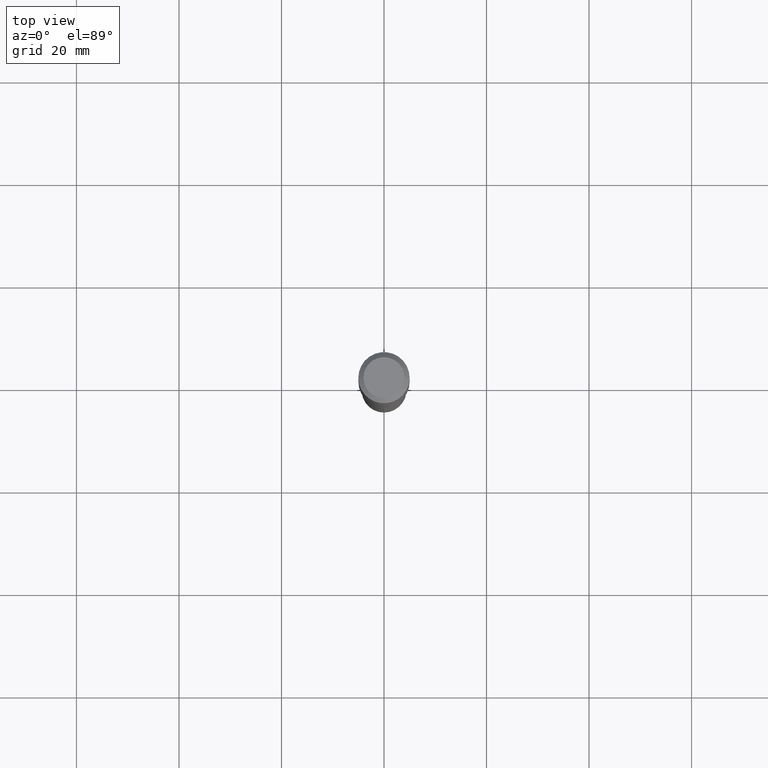
[diagram: clean part render]
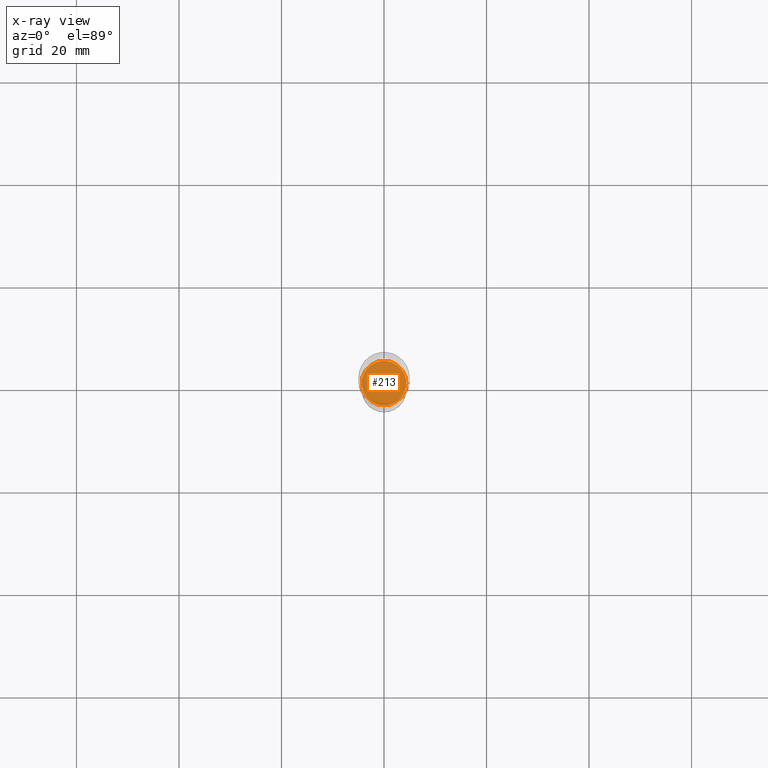
[diagram: x-ray — body ghosted, one internal face saturated and labeled with its STEP entity id]
A machine part, top view, then the same camera in x-ray: the body is ghosted and one INTERNAL B-rep face — a face not visible from any outside direction — is saturated and labeled: STEP entity #213.
In plain terms, the highlighted planar face has unit normal (-0, 0, 1).
Its self-contained STEP definition (entity closure, byte-faithful):
#19 = AXIS2_PLACEMENT_3D ( 'NONE', #127, #358, #44 ) ;
#43 = EDGE_CURVE ( 'NONE', #233, #345, #224, .T. ) ;
#44 = DIRECTION ( 'NONE',  ( 1.000000000000000000, -6.982962677686265922E-15, 4.876176775795935793E-29 ) ) ;
#63 = DIRECTION ( 'NONE',  ( 1.000000000000000000, -6.982962677686270655E-15, 0.000000000000000000 ) ) ;
#109 = AXIS2_PLACEMENT_3D ( 'NONE', #214, #394, #63 ) ;
#127 = CARTESIAN_POINT ( 'NONE',  ( 8.685805640443478176E-29, -4.631943866647868288E-15, -2.440899999999999181 ) ) ;
#211 = FACE_OUTER_BOUND ( 'NONE', #300, .T. ) ;
#213 = ADVANCED_FACE ( 'NONE', ( #211 ), #318, .F. ) ;
#214 = CARTESIAN_POINT ( 'NONE',  ( 5.969144809017296796E-29, -8.522356799982229810E-15, -2.440899999999998737 ) ) ;
#224 = CIRCLE ( 'NONE', #478, 0.1713999999999999690 ) ;
#229 = ORIENTED_EDGE ( 'NONE', *, *, #43, .F. ) ;
#233 = VERTEX_POINT ( 'NONE', #490 ) ;
#243 = DIRECTION ( 'NONE',  ( -2.445468806185136597E-29, 3.491481338843145583E-15, 1.000000000000000000 ) ) ;
#244 = CARTESIAN_POINT ( 'NONE',  ( -0.1713999999999999690, -7.301837323715307702E-15, -2.440899999999998737 ) ) ;
#267 = ORIENTED_EDGE ( 'NONE', *, *, #272, .F. ) ;
#272 = EDGE_CURVE ( 'NONE', #345, #233, #331, .T. ) ;
#300 = EDGE_LOOP ( 'NONE', ( #229, #267 ) ) ;
#317 = CARTESIAN_POINT ( 'NONE',  ( 5.969144809017296796E-29, -8.522356799982229810E-15, -2.440899999999998737 ) ) ;
#318 = PLANE ( 'NONE',  #19 ) ;
#331 = CIRCLE ( 'NONE', #109, 0.1713999999999999690 ) ;
#345 = VERTEX_POINT ( 'NONE', #244 ) ;
#358 = DIRECTION ( 'NONE',  ( -2.438088387897960049E-29, 3.491481338843145188E-15, 1.000000000000000000 ) ) ;
#394 = DIRECTION ( 'NONE',  ( -2.445468806185136597E-29, 3.491481338843145583E-15, 1.000000000000000000 ) ) ;
#423 = DIRECTION ( 'NONE',  ( 1.000000000000000000, -6.982962677686270655E-15, 0.000000000000000000 ) ) ;
#478 = AXIS2_PLACEMENT_3D ( 'NONE', #317, #243, #423 ) ;
#490 = CARTESIAN_POINT ( 'NONE',  ( 0.1713999999999999690, -9.719236602937656833E-15, -2.440899999999998737 ) ) ;